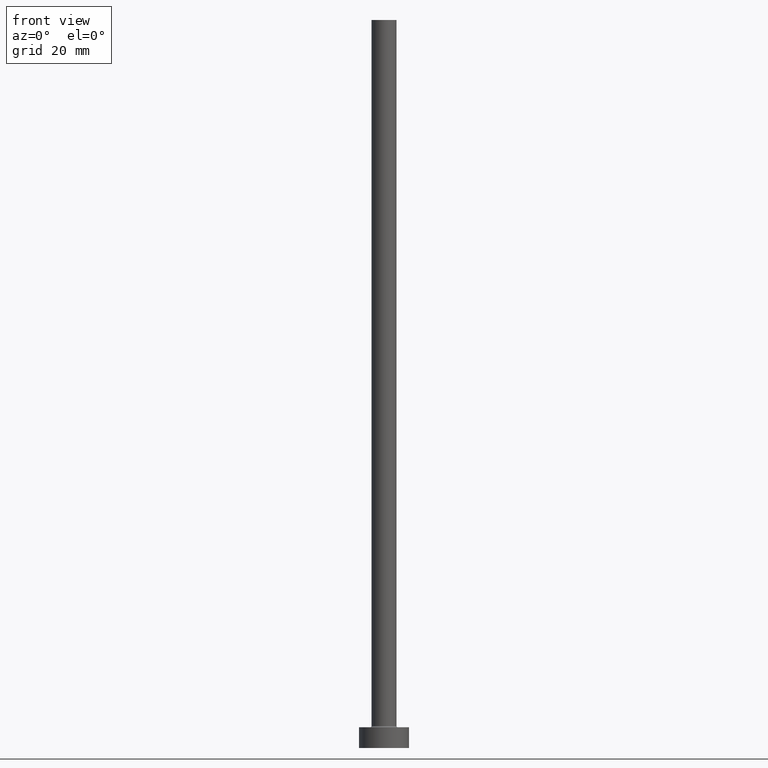
[diagram: clean part render]
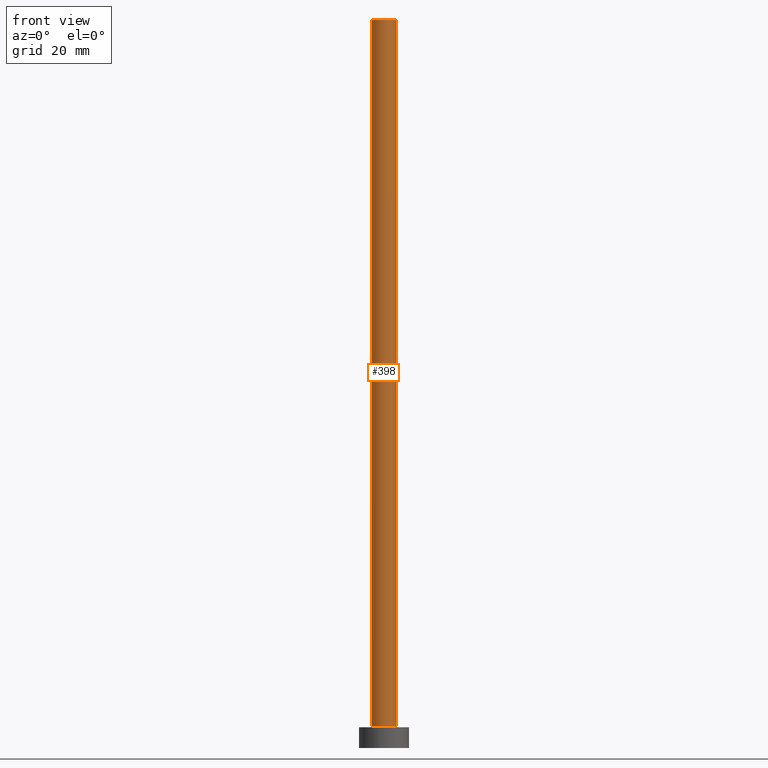
[diagram: same view with one face highlighted and labeled with its STEP entity id]
A machine part, front view. The second image highlights one B-rep face of the part: STEP entity #398.
In plain terms, the highlighted cylindrical surface (edge-blend (fillet) strip) has radius 3 mm, axis along (-0, -0, -1).
Its self-contained STEP definition (entity closure, byte-faithful):
#14 = CARTESIAN_POINT ( 'NONE',  ( 0.000000000000000000, 0.000000000000000000, 5.299999999999998934 ) ) ;
#20 = DIRECTION ( 'NONE',  ( 0.000000000000000000, 0.000000000000000000, 1.000000000000000000 ) ) ;
#24 = FACE_OUTER_BOUND ( 'NONE', #150, .T. ) ;
#31 = AXIS2_PLACEMENT_3D ( 'NONE', #175, #235, #416 ) ;
#49 = CIRCLE ( 'NONE', #326, 3.000000000000000444 ) ;
#60 = LINE ( 'NONE', #226, #268 ) ;
#65 = ORIENTED_EDGE ( 'NONE', *, *, #264, .F. ) ;
#72 = VERTEX_POINT ( 'NONE', #101 ) ;
#101 = CARTESIAN_POINT ( 'NONE',  ( 3.000000000000000444, 3.673940397442060361E-16, 175.0000000000000284 ) ) ;
#104 = CARTESIAN_POINT ( 'NONE',  ( 3.000000000000000444, 3.673940397442060361E-16, 175.0000000000000284 ) ) ;
#115 = ORIENTED_EDGE ( 'NONE', *, *, #221, .T. ) ;
#116 = CIRCLE ( 'NONE', #438, 3.000000000000000444 ) ;
#119 = VERTEX_POINT ( 'NONE', #234 ) ;
#123 = DIRECTION ( 'NONE',  ( 0.000000000000000000, 0.000000000000000000, 1.000000000000000000 ) ) ;
#143 = LINE ( 'NONE', #104, #338 ) ;
#150 = EDGE_LOOP ( 'NONE', ( #402, #65, #115, #347 ) ) ;
#175 = CARTESIAN_POINT ( 'NONE',  ( 0.000000000000000000, 0.000000000000000000, 175.0000000000000284 ) ) ;
#178 = VERTEX_POINT ( 'NONE', #421 ) ;
#214 = CARTESIAN_POINT ( 'NONE',  ( -3.000000000000000444, 0.000000000000000000, 175.0000000000000284 ) ) ;
#221 = EDGE_CURVE ( 'NONE', #444, #178, #60, .T. ) ;
#226 = CARTESIAN_POINT ( 'NONE',  ( -3.000000000000000444, 0.000000000000000000, 175.0000000000000284 ) ) ;
#234 = CARTESIAN_POINT ( 'NONE',  ( 3.000000000000000444, 3.673940397442060361E-16, 5.299999999999998934 ) ) ;
#235 = DIRECTION ( 'NONE',  ( -0.000000000000000000, -0.000000000000000000, -1.000000000000000000 ) ) ;
#255 = DIRECTION ( 'NONE',  ( 1.000000000000000000, 0.000000000000000000, 0.000000000000000000 ) ) ;
#261 = DIRECTION ( 'NONE',  ( 1.000000000000000000, 0.000000000000000000, 0.000000000000000000 ) ) ;
#264 = EDGE_CURVE ( 'NONE', #444, #72, #116, .T. ) ;
#267 = DIRECTION ( 'NONE',  ( -0.000000000000000000, -0.000000000000000000, -1.000000000000000000 ) ) ;
#268 = VECTOR ( 'NONE', #292, 1000.000000000000000 ) ;
#280 = EDGE_CURVE ( 'NONE', #178, #119, #49, .T. ) ;
#292 = DIRECTION ( 'NONE',  ( -0.000000000000000000, -0.000000000000000000, -1.000000000000000000 ) ) ;
#300 = CARTESIAN_POINT ( 'NONE',  ( 0.000000000000000000, 0.000000000000000000, 175.0000000000000284 ) ) ;
#306 = EDGE_CURVE ( 'NONE', #72, #119, #143, .T. ) ;
#326 = AXIS2_PLACEMENT_3D ( 'NONE', #14, #20, #255 ) ;
#338 = VECTOR ( 'NONE', #267, 1000.000000000000000 ) ;
#340 = CYLINDRICAL_SURFACE ( 'NONE', #31, 3.000000000000000444 ) ;
#347 = ORIENTED_EDGE ( 'NONE', *, *, #280, .T. ) ;
#398 = ADVANCED_FACE ( 'NONE', ( #24 ), #340, .T. ) ;
#402 = ORIENTED_EDGE ( 'NONE', *, *, #306, .F. ) ;
#416 = DIRECTION ( 'NONE',  ( -1.000000000000000000, 0.000000000000000000, 0.000000000000000000 ) ) ;
#421 = CARTESIAN_POINT ( 'NONE',  ( -3.000000000000000444, 0.000000000000000000, 5.299999999999998934 ) ) ;
#438 = AXIS2_PLACEMENT_3D ( 'NONE', #300, #123, #261 ) ;
#444 = VERTEX_POINT ( 'NONE', #214 ) ;